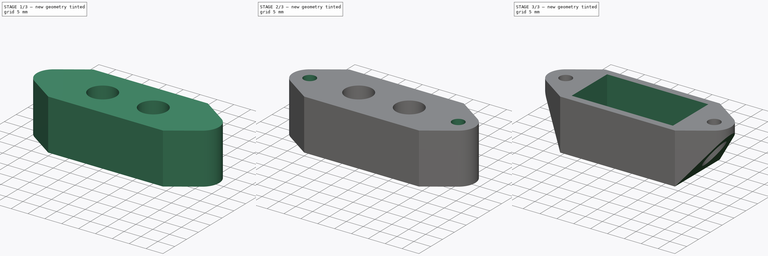
[diagram: build sequence overview — one tinted view per stage of 3, left to right]
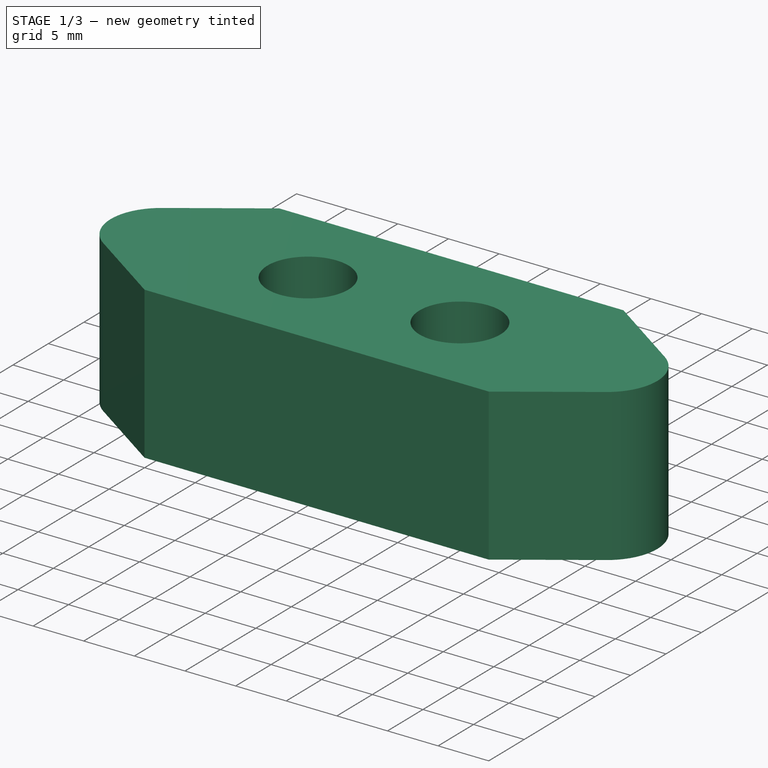
[diagram: stage 1 of 3 — iso view after this stage's code; geometry added in this stage tinted green]
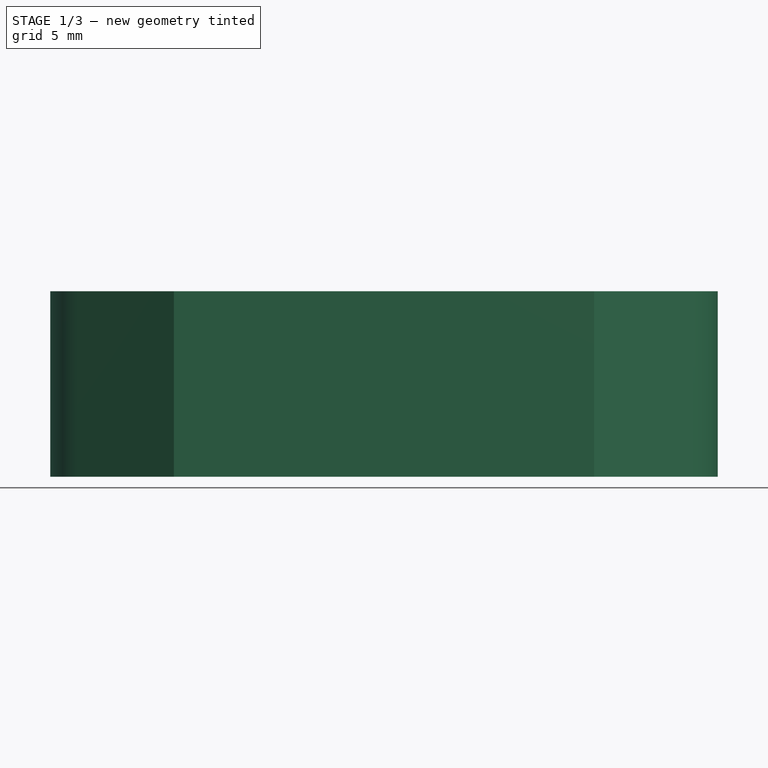
[diagram: stage 1 of 3 — front view after this stage's code; geometry added in this stage tinted green]
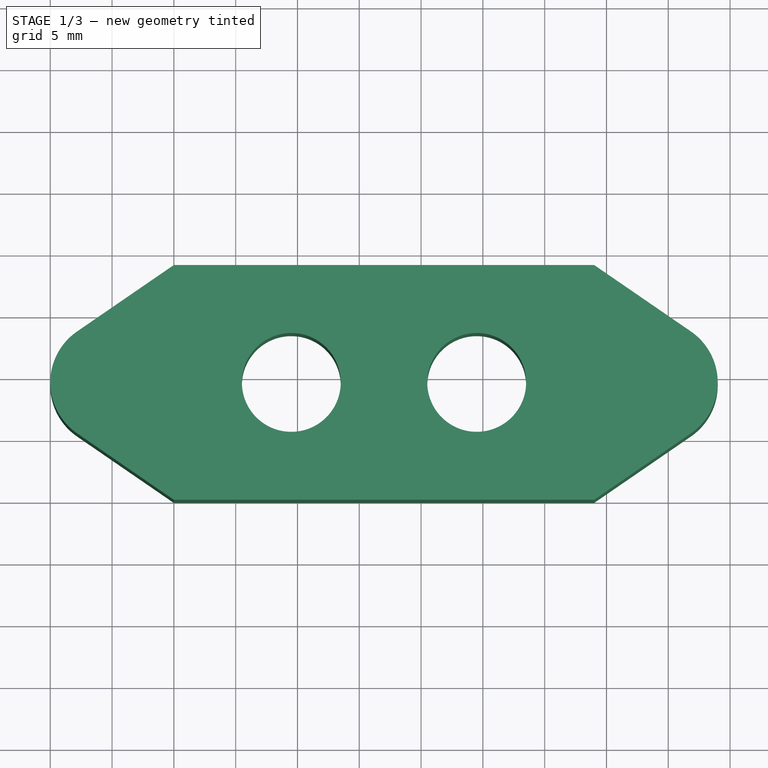
[diagram: stage 1 of 3 — top view after this stage's code; geometry added in this stage tinted green]
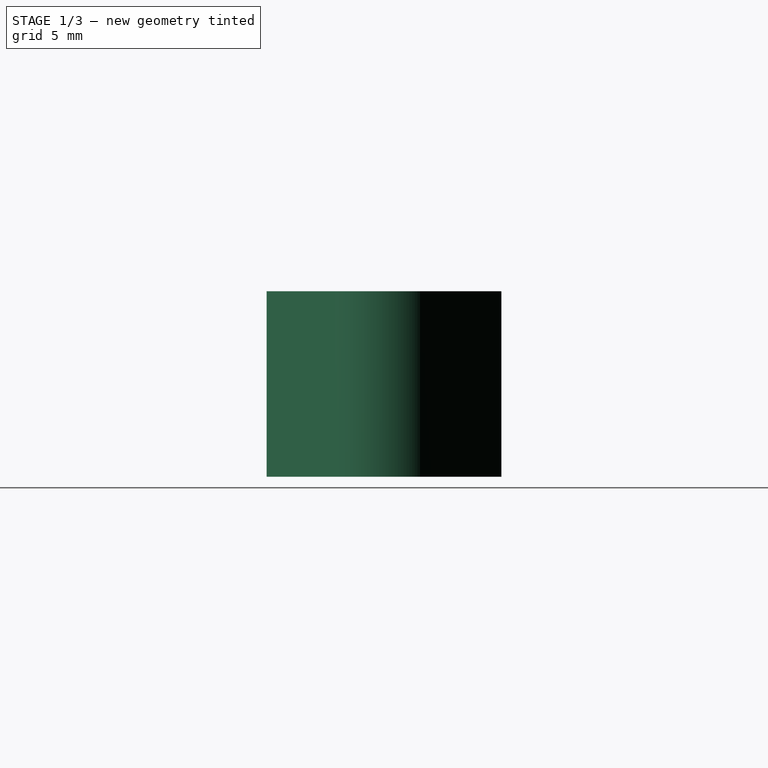
[diagram: stage 1 of 3 — right view after this stage's code; geometry added in this stage tinted green]
FCSTD DOCUMENT
Label: DCJackMount
objects: Sketcher::SketchObject×5, PartDesign::Pocket×4, PartDesign::Pad×1
note: 11 computed .brp shape members not serialized (recipe doc carries the construction recipe); baked Part::Feature solids carry a one-line shape summary decoded from their .brp

FEATURE [Sketcher::SketchObject] Sketch
  sketch-geometry (15):
    g0: ArcOfCircle CenterX=-5 CenterY=9.5 CenterZ=0 NormalX=0 NormalY=0 NormalZ=1 Radius=5 StartAngle=2.17263 EndAngle=4.11055
    g1: ArcOfCircle CenterX=38.9999 CenterY=9.5 CenterZ=0 NormalX=0 NormalY=0 NormalZ=1 Radius=5 StartAngle=5.31424 EndAngle=7.25214
    g2: LineSegment StartX=-7.83079 StartY=13.6215 StartZ=0 EndX=0 EndY=19 EndZ=0
    g3: LineSegment StartX=0 StartY=19 StartZ=0 EndX=34 EndY=19 EndZ=0
    g4: LineSegment StartX=34 StartY=19 StartZ=0 EndX=41.8308 EndY=13.6215 EndZ=0
    g5: LineSegment StartX=41.8308 StartY=5.37854 StartZ=0 EndX=34 EndY=0 EndZ=0
    g6: LineSegment StartX=34 StartY=0 StartZ=0 EndX=0 EndY=0 EndZ=0
    g7: LineSegment StartX=0 StartY=0 StartZ=0 EndX=-7.83079 EndY=5.37852 EndZ=0
    g8: LineSegment [constr] StartX=0 StartY=19 StartZ=0 EndX=0 EndY=0 EndZ=0
    g9: LineSegment [constr] StartX=34 StartY=19 StartZ=0 EndX=34 EndY=0 EndZ=0
    g10: LineSegment [constr] StartX=0 StartY=9.5 StartZ=0 EndX=9.5 EndY=9.5 EndZ=0
    g11: LineSegment [constr] StartX=9.5 StartY=9.5 StartZ=0 EndX=24.5 EndY=9.5 EndZ=0
    g12: LineSegment [constr] StartX=24.5 StartY=9.5 StartZ=0 EndX=34 EndY=9.5 EndZ=0
    g13: Circle CenterX=9.5 CenterY=9.5 CenterZ=0 NormalX=0 NormalY=0 NormalZ=1 Radius=4
    g14: Circle CenterX=24.5 CenterY=9.5 CenterZ=0 NormalX=0 NormalY=0 NormalZ=1 Radius=4
  constraints (44):
    c: Coincident(g2,g0)
    c: Coincident(g3,g2)
    c: Horizontal(g3)
    c: Coincident(g3,g4)
    c: Coincident(g4,g1)
    c: Coincident(g5,g6)
    c: Horizontal(g6)
    c: Coincident(g6,g7)
    c: Coincident(g7,g0)
    c: Coincident(g1,g5)
    c: Equal(g4,g5)
    c: Equal(g5,g7)
    c: Equal(g7,g2)
    c: Coincident(g8,g2)
    c: Coincident(g8,g6)
    c: Vertical(g8)
    c: Coincident(g9,g3)
    c: Coincident(g9,g5)
    c: Vertical(g9)
    c: Equal(g0,g1)
    c: Radius(g0) = 5
    c: DistanceY(g2,g6) = -19
    c: DistanceX(g0,g6) = 5
    c: DistanceX(g6,g5) = 34
    c: DistanceX(g6) = 0
    c: DistanceY(g6) = 0
    c: PointOnObject(g10,g8)
    c: Horizontal(g10)
    c: Coincident(g10,g11)
    c: Horizontal(g11)
    c: Coincident(g11,g12)
    c: PointOnObject(g12,g9)
    c: Horizontal(g12)
    c: Tangent(g2,g0)
    c: Tangent(g7,g0)
    c: Tangent(g4,g1)
    c: Tangent(g1,g5)
    c: Coincident(g13,g10)
    c: Coincident(g14,g11)
    c: Equal(g14,g13)
    c: Radius(g13) = 4
    c: DistanceY(g10,g6) = -9.5
    c: DistanceX(g11) = 15
    c: Equal(g10,g12)
FEATURE [PartDesign::Pad] Pad
  Length = 15
  MirroredExtent = false
  Sketch = -> Sketch
FEATURE [Sketcher::SketchObject] Sketch001
  Placement = pos=(0,0,0) rot=(1,0,0;3.14159rad)
  Support = -> Pad [Face11]
  sketch-geometry (3):
    g0: Circle CenterX=-5 CenterY=-9.5 CenterZ=0 NormalX=0 NormalY=0 NormalZ=1 Radius=3
    g1: Circle CenterX=39 CenterY=-9.5 CenterZ=0 NormalX=0 NormalY=0 NormalZ=1 Radius=3
    g2: LineSegment [constr] StartX=-5 StartY=-9.5 StartZ=0 EndX=39 EndY=-9.5 EndZ=0
  constraints (8):
    c: Coincident(g2,g0)
    c: Coincident(g2,g1)
    c: Horizontal(g2)
    c: Radius(g0) = 3
    c: DistanceX(g0) = -5
    c: DistanceY(g0) = -9.5
    c: DistanceX(g0,g1) = 44
    c: Equal(g0,g1)
FEATURE [PartDesign::Pocket] Pocket
  Length = 12
  Sketch = -> Sketch001
  Type = 0
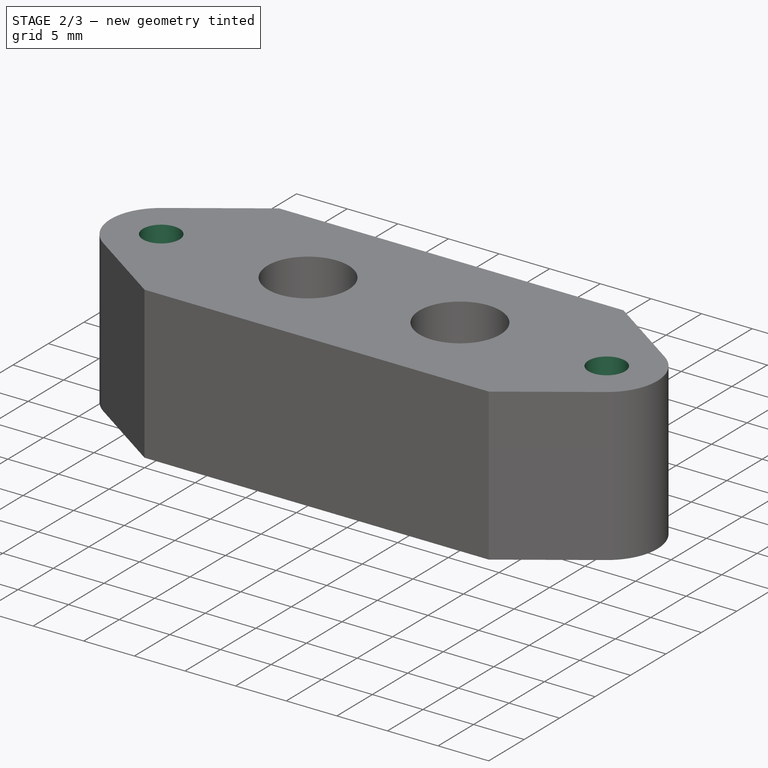
[diagram: stage 2 of 3 — iso view after this stage's code; geometry added in this stage tinted green]
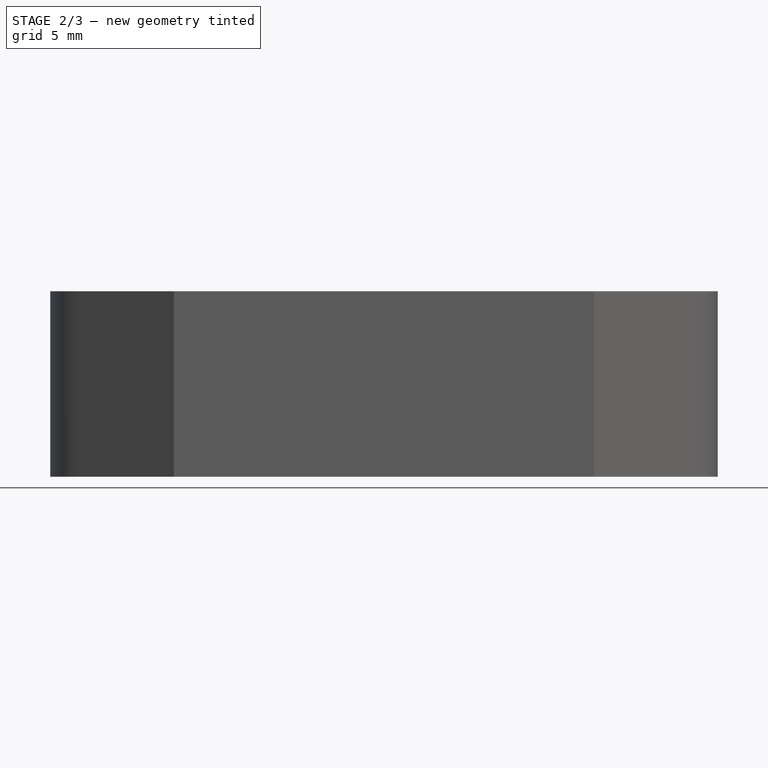
[diagram: stage 2 of 3 — front view after this stage's code; geometry added in this stage tinted green]
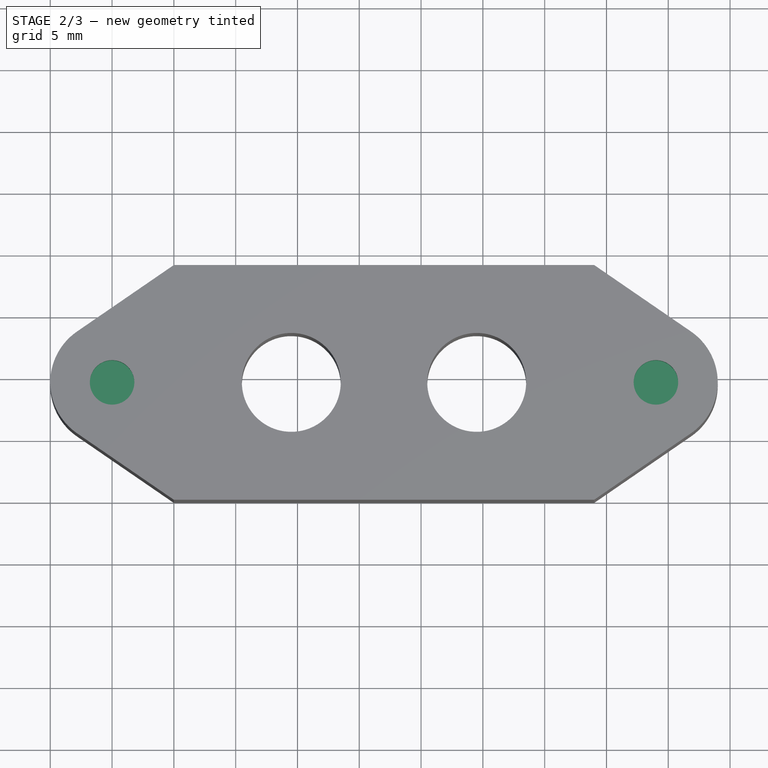
[diagram: stage 2 of 3 — top view after this stage's code; geometry added in this stage tinted green]
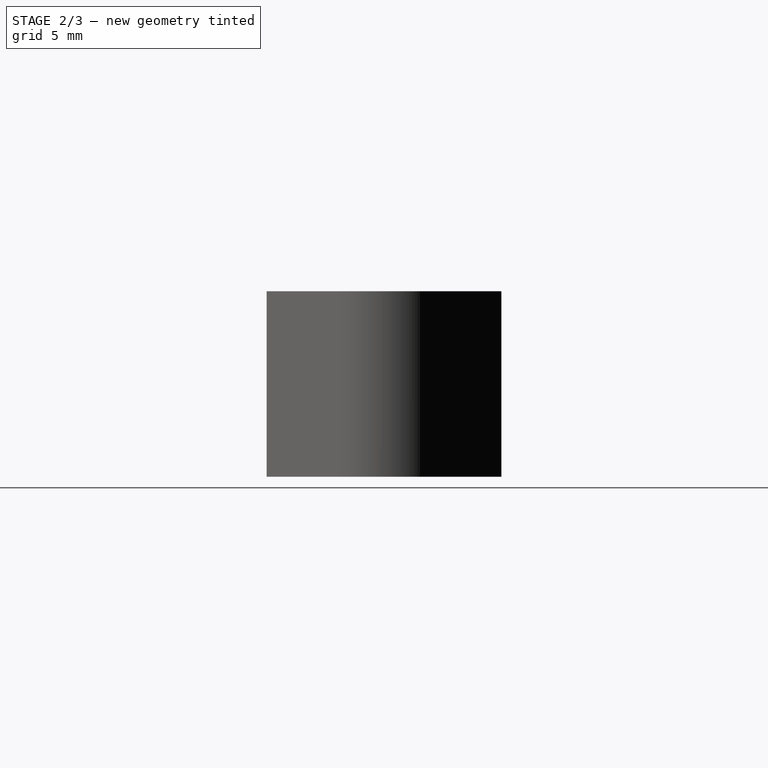
[diagram: stage 2 of 3 — right view after this stage's code; geometry added in this stage tinted green]
FEATURE [Sketcher::SketchObject] Sketch002
  Placement = pos=(0,0,15) rot=(0,0,1;0rad)
  Support = -> Pocket [Face5]
  sketch-geometry (3):
    g0: Circle CenterX=-5 CenterY=9.5 CenterZ=0 NormalX=0 NormalY=0 NormalZ=1 Radius=1.8
    g1: Circle CenterX=39 CenterY=9.5 CenterZ=0 NormalX=0 NormalY=0 NormalZ=1 Radius=1.8
    g2: LineSegment [constr] StartX=-5 StartY=9.5 StartZ=0 EndX=39 EndY=9.5 EndZ=0
  constraints (8):
    c: Coincident(g2,g0)
    c: Coincident(g2,g1)
    c: Horizontal(g2)
    c: Radius(g0) = 1.8
    c: DistanceX(g0) = -5
    c: DistanceY(g0) = 9.5
    c: DistanceX(g0,g1) = 44
    c: Equal(g0,g1)
FEATURE [PartDesign::Pocket] Pocket001
  Length = 1.8
  Sketch = -> Sketch002
  Type = 0
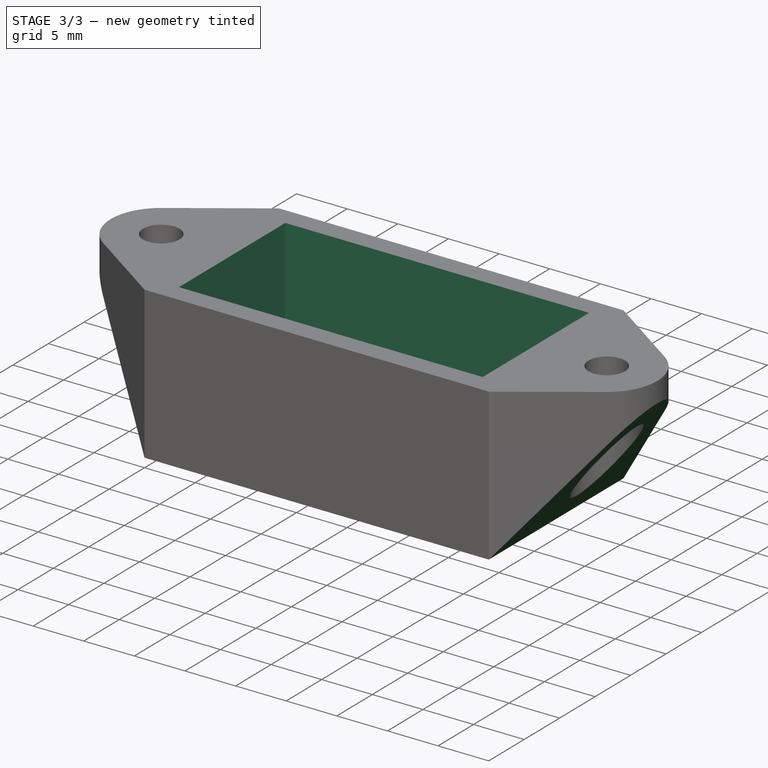
[diagram: stage 3 of 3 — iso view after this stage's code; geometry added in this stage tinted green]
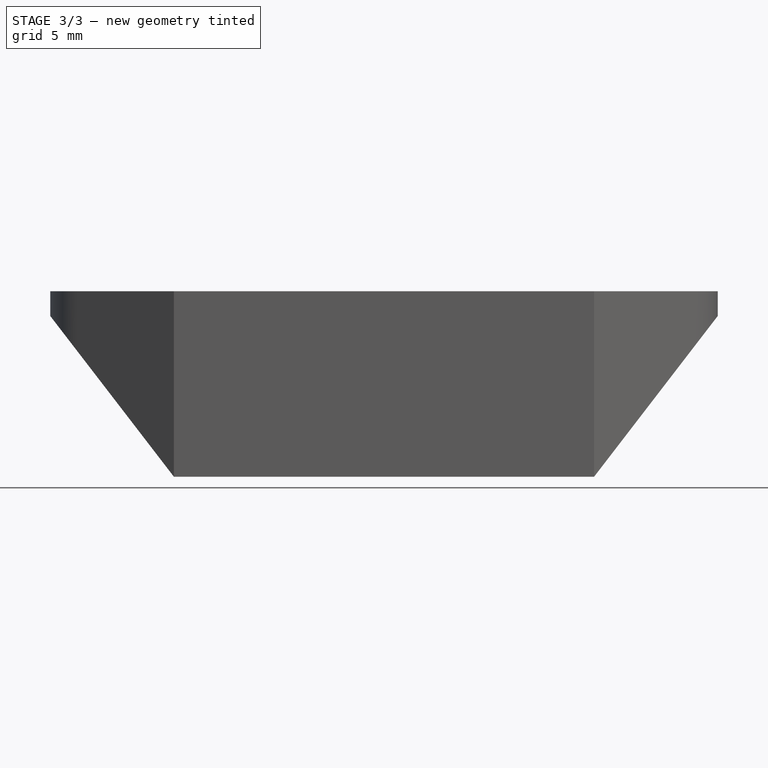
[diagram: stage 3 of 3 — front view after this stage's code; geometry added in this stage tinted green]
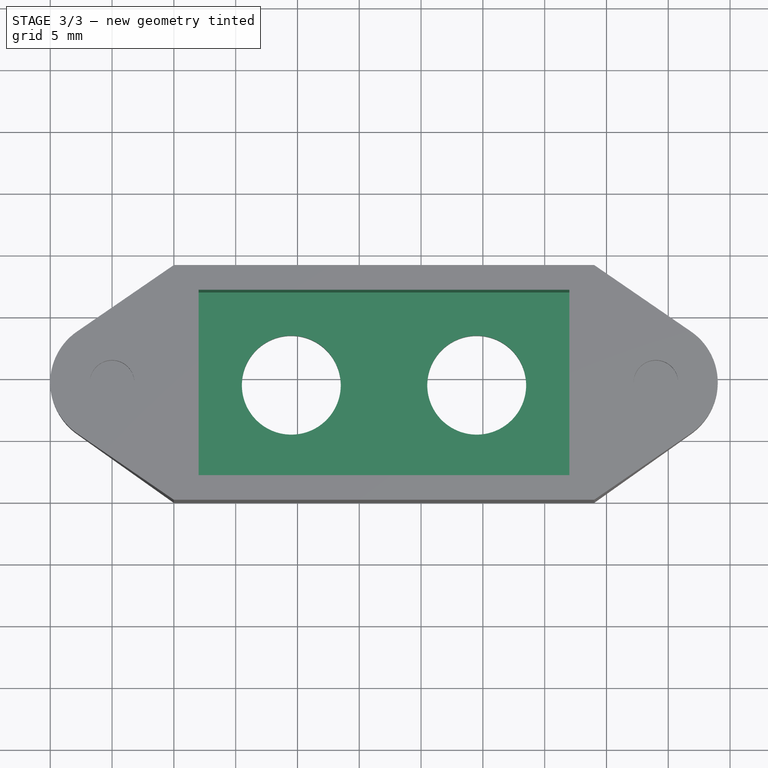
[diagram: stage 3 of 3 — top view after this stage's code; geometry added in this stage tinted green]
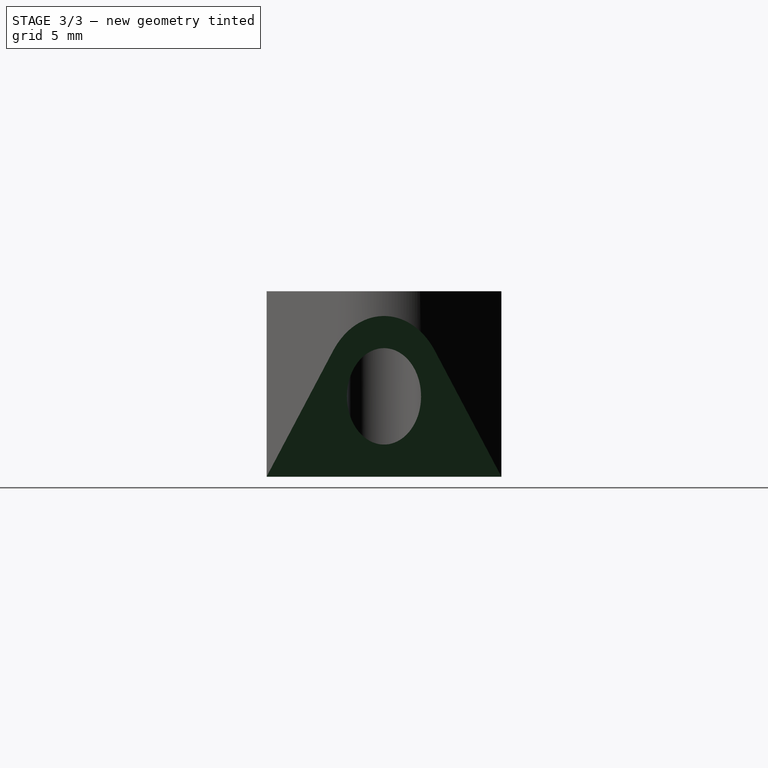
[diagram: stage 3 of 3 — right view after this stage's code; geometry added in this stage tinted green]
FEATURE [Sketcher::SketchObject] Sketch003
  Placement = pos=(0,0,15) rot=(0,0,1;0rad)
  Support = -> Pocket001 [Face5]
  sketch-geometry (4):
    g0: LineSegment StartX=2 StartY=17 StartZ=0 EndX=32 EndY=17 EndZ=0
    g1: LineSegment StartX=32 StartY=17 StartZ=0 EndX=32 EndY=2 EndZ=0
    g2: LineSegment StartX=32 StartY=2 StartZ=0 EndX=2 EndY=2 EndZ=0
    g3: LineSegment StartX=2 StartY=2 StartZ=0 EndX=2 EndY=17 EndZ=0
  constraints (12):
    c: Coincident(g0,g1)
    c: Coincident(g1,g2)
    c: Coincident(g2,g3)
    c: Coincident(g3,g0)
    c: Horizontal(g0)
    c: Horizontal(g2)
    c: Vertical(g1)
    c: Vertical(g3)
    c: DistanceX(g2) = 2
    c: DistanceY(g2) = 2
    c: DistanceX(g2) = -30
    c: DistanceY(g1) = -15
FEATURE [PartDesign::Pocket] Pocket002
  Length = 13
  Sketch = -> Sketch003
  Type = 0
FEATURE [Sketcher::SketchObject] Sketch004
  Placement = pos=(0,0,0) rot=(1,0,0;1.5708rad)
  Support = -> Pocket002 [Face9]
  sketch-geometry (9):
    g0: LineSegment StartX=-11 StartY=13 StartZ=0 EndX=-11 EndY=-2 EndZ=0
    g1: LineSegment StartX=-11 StartY=-2 StartZ=0 EndX=45 EndY=-2 EndZ=0
    g2: LineSegment StartX=45 StartY=-2 StartZ=0 EndX=45 EndY=13 EndZ=0
    g3: LineSegment StartX=45 StartY=13 StartZ=0 EndX=44 EndY=13 EndZ=0
    g4: LineSegment StartX=44 StartY=13 StartZ=0 EndX=34 EndY=0 EndZ=0
    g5: LineSegment StartX=34 StartY=0 StartZ=0 EndX=0 EndY=0 EndZ=0
    g6: LineSegment StartX=0 StartY=0 StartZ=0 EndX=-10 EndY=13 EndZ=0
    g7: LineSegment StartX=-10 StartY=13 StartZ=0 EndX=-11 EndY=13 EndZ=0
    g8: LineSegment [constr] StartX=-10 StartY=13 StartZ=0 EndX=44 EndY=13 EndZ=0
  constraints (26):
    c: Vertical(g0)
    c: Coincident(g0,g1)
    c: Horizontal(g1)
    c: Coincident(g1,g2)
    c: Vertical(g2)
    c: Coincident(g2,g3)
    c: Horizontal(g3)
    c: Coincident(g3,g4)
    c: Coincident(g4,g5)
    c: Horizontal(g5)
    c: Coincident(g5,g6)
    c: Coincident(g6,g7)
    c: Coincident(g7,g0)
    c: Horizontal(g7)
    c: Equal(g7,g3)
    c: DistanceX(g7) = -1
    c: DistanceX(g5,g4) = 34
    c: Coincident(g8,g6)
    c: Coincident(g8,g3)
    c: Horizontal(g8)
    c: Equal(g6,g4)
    c: DistanceX(g0,g2) = 56
    c: DistanceY(g1,g4) = 2
    c: DistanceY(g2,g1) = -15
    c: DistanceY(g0) = -2
    c: DistanceX(g5) = 0
FEATURE [PartDesign::Pocket] Pocket004
  Length = 19
  Sketch = -> Sketch004
  Type = 0
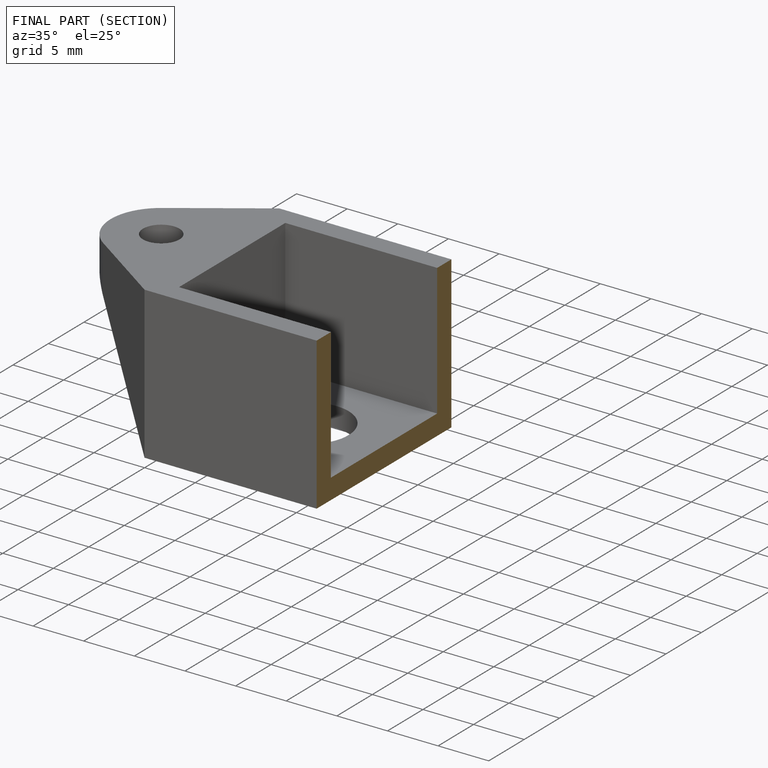
[diagram: finished part — half-section view (interior)]
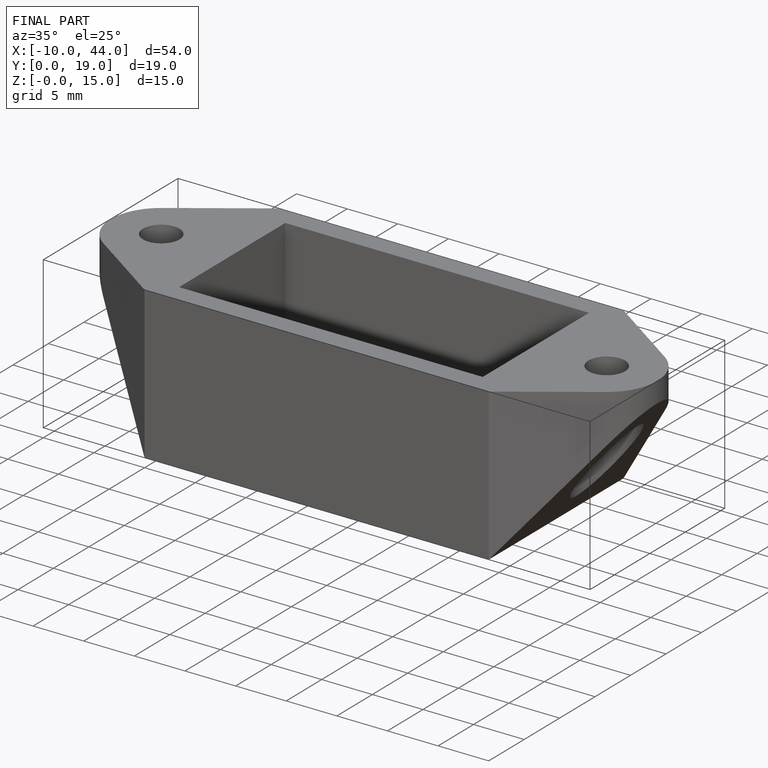
[diagram: finished part — iso view with bounding-box wireframe]
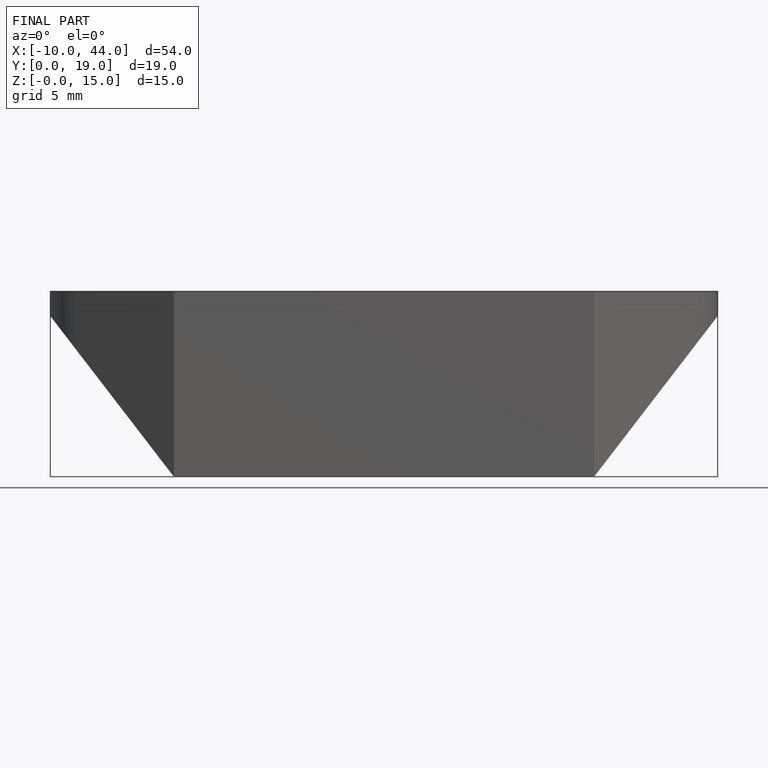
[diagram: finished part — front view with bounding-box wireframe]
